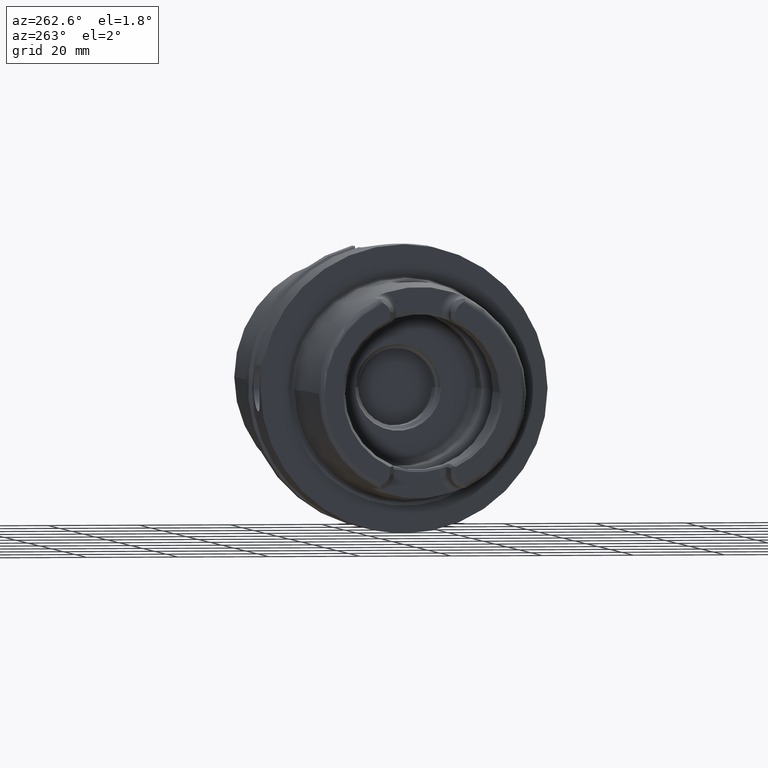
[diagram: clean part render]
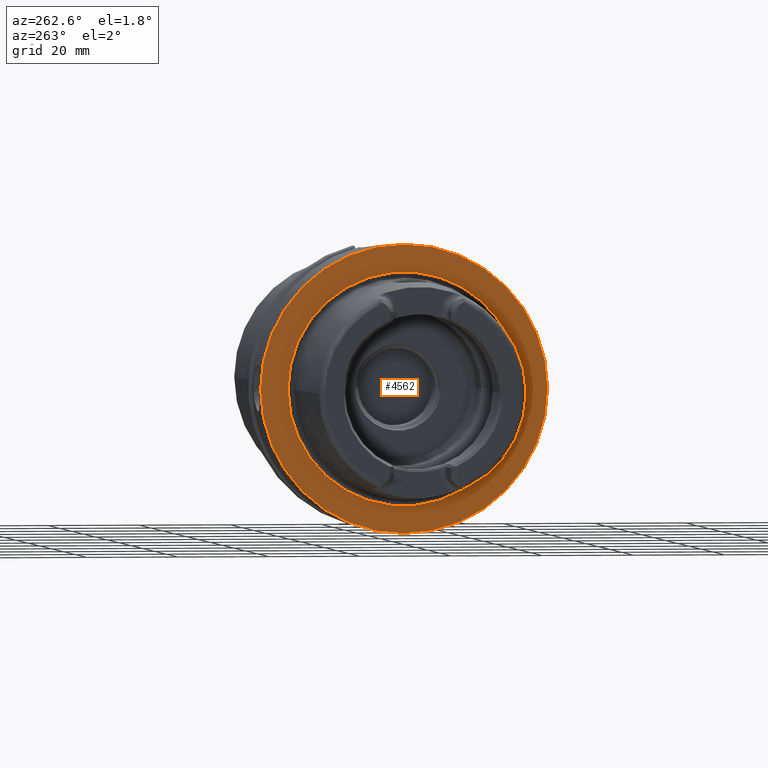
[diagram: same view with one face highlighted and labeled with its STEP entity id]
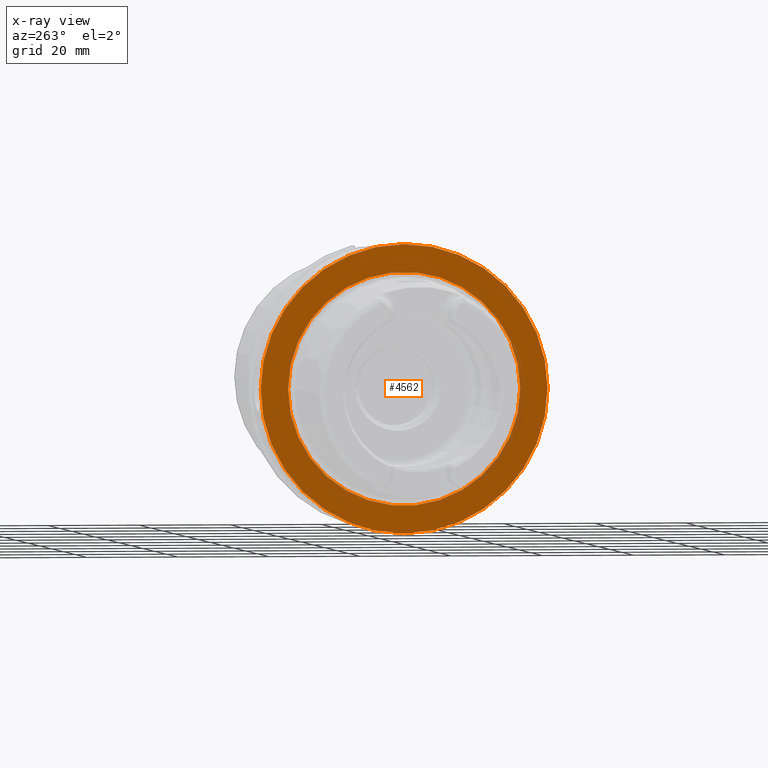
[diagram: x-ray of the same camera — body ghosted, the highlighted face saturated]
A machine part, auxiliary view. The second image highlights one B-rep face of the part: STEP entity #4562.
The next image is the same camera in x-ray: the body ghosted, the highlighted face saturated — about 4% of this face is hidden behind the body in this view.
In plain terms, the highlighted planar face has unit normal (1, 0, 0).
Its self-contained STEP definition (entity closure, byte-faithful):
#1068=CARTESIAN_POINT('',(-1.421085471520E-14,0.E0,0.E0));
#1069=DIRECTION('',(1.E0,0.E0,0.E0));
#1070=DIRECTION('',(0.E0,1.E0,0.E0));
#1071=AXIS2_PLACEMENT_3D('',#1068,#1069,#1070);
#1073=CARTESIAN_POINT('',(-1.421085471520E-14,0.E0,0.E0));
#1074=DIRECTION('',(-1.E0,0.E0,0.E0));
#1075=DIRECTION('',(0.E0,1.E0,0.E0));
#1076=AXIS2_PLACEMENT_3D('',#1073,#1074,#1075);
#1078=CARTESIAN_POINT('',(0.E0,0.E0,0.E0));
#1079=DIRECTION('',(-1.E0,0.E0,0.E0));
#1080=DIRECTION('',(0.E0,-1.E0,0.E0));
#1081=AXIS2_PLACEMENT_3D('',#1078,#1079,#1080);
#1083=CARTESIAN_POINT('',(0.E0,0.E0,0.E0));
#1084=DIRECTION('',(-1.E0,0.E0,0.E0));
#1085=DIRECTION('',(0.E0,1.E0,0.E0));
#1086=AXIS2_PLACEMENT_3D('',#1083,#1084,#1085);
#2809=CARTESIAN_POINT('',(-1.421085471520E-14,3.15E1,0.E0));
#2810=CARTESIAN_POINT('',(-1.421085471520E-14,-3.15E1,0.E0));
#2811=VERTEX_POINT('',#2809);
#2812=VERTEX_POINT('',#2810);
#2837=CARTESIAN_POINT('',(0.E0,-2.549042414966E1,0.E0));
#2838=VERTEX_POINT('',#2837);
#2839=CARTESIAN_POINT('',(0.E0,2.549042414966E1,0.E0));
#2840=VERTEX_POINT('',#2839);
#4547=CARTESIAN_POINT('',(0.E0,0.E0,0.E0));
#4548=DIRECTION('',(1.E0,0.E0,0.E0));
#4549=DIRECTION('',(0.E0,-1.E0,0.E0));
#4550=AXIS2_PLACEMENT_3D('',#4547,#4548,#4549);
#4551=PLANE('',#4550);
#4553=ORIENTED_EDGE('',*,*,#4552,.T.);
#4555=ORIENTED_EDGE('',*,*,#4554,.F.);
#4556=EDGE_LOOP('',(#4553,#4555));
#4557=FACE_OUTER_BOUND('',#4556,.F.);
#4558=ORIENTED_EDGE('',*,*,#4542,.T.);
#4559=ORIENTED_EDGE('',*,*,#4526,.T.);
#4560=EDGE_LOOP('',(#4558,#4559));
#4561=FACE_BOUND('',#4560,.F.);
#4562=ADVANCED_FACE('',(#4557,#4561),#4551,.F.);
#1072=CIRCLE('',#1071,3.15E1);
#1077=CIRCLE('',#1076,3.15E1);
#1082=CIRCLE('',#1081,2.549042414966E1);
#1087=CIRCLE('',#1086,2.549042414966E1);
#4526=EDGE_CURVE('',#2840,#2838,#1087,.T.);
#4542=EDGE_CURVE('',#2838,#2840,#1082,.T.);
#4552=EDGE_CURVE('',#2811,#2812,#1072,.T.);
#4554=EDGE_CURVE('',#2811,#2812,#1077,.T.);